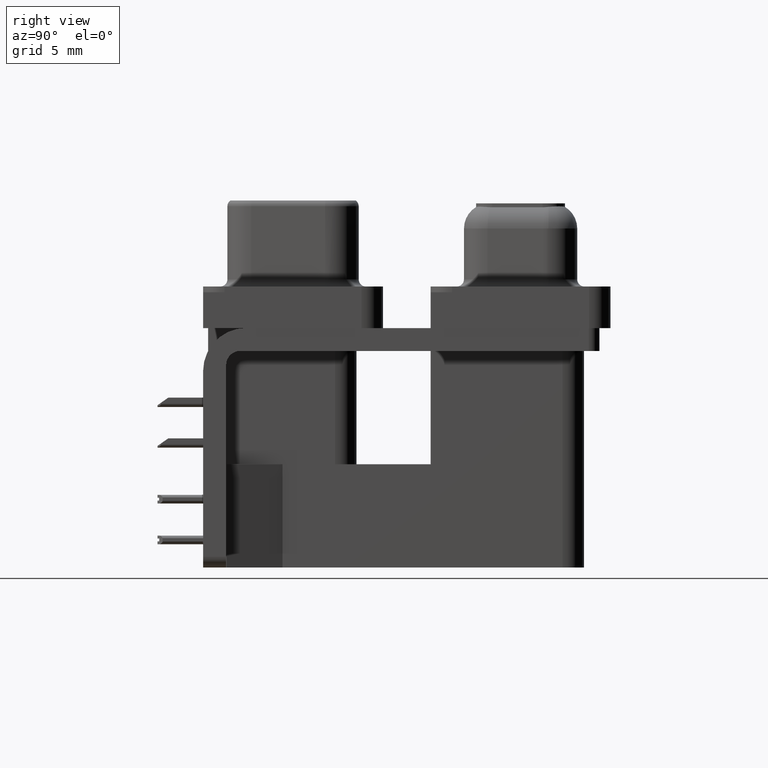
[diagram: clean part render]
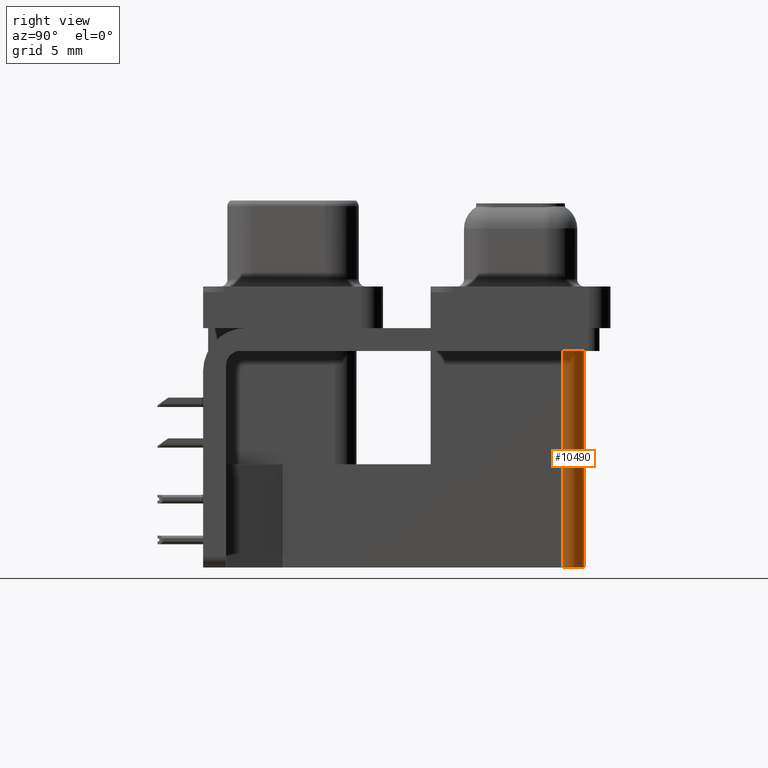
[diagram: same view with one face highlighted and labeled with its STEP entity id]
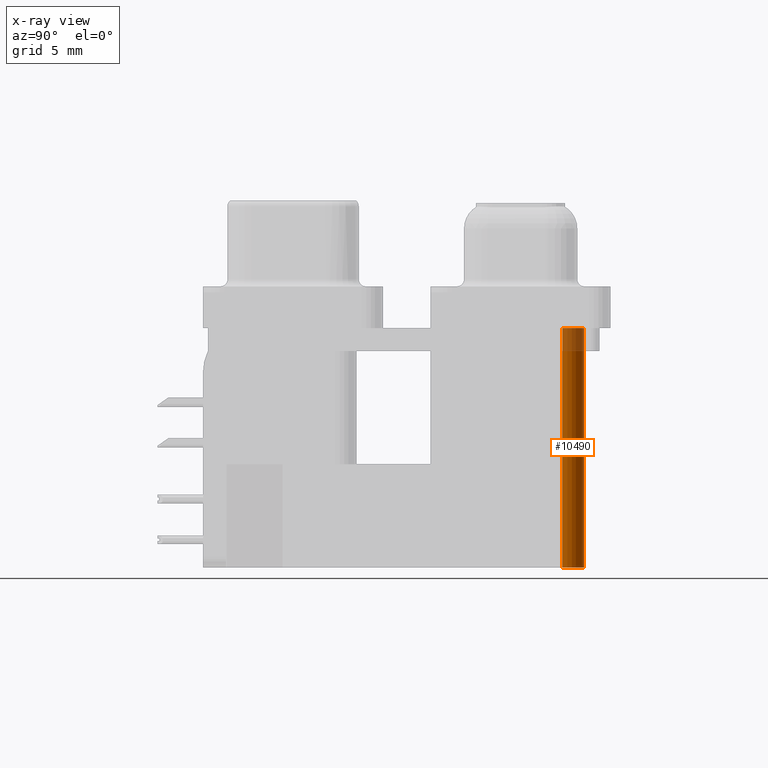
[diagram: x-ray of the same camera — body ghosted, the highlighted face saturated]
A machine part, right view. The second image highlights one B-rep face of the part: STEP entity #10490.
The next image is the same camera in x-ray: the body ghosted, the highlighted face saturated — about 10% of this face is hidden behind the body in this view.
In plain terms, the highlighted cylindrical surface (edge-blend (fillet) strip) has radius 1.5 mm, axis along (0, 0, 1).
Its self-contained STEP definition (entity closure, byte-faithful):
#1056 = DIRECTION ( 'NONE',  ( 0.0000000000000000000, 0.0000000000000000000, -1.000000000000000000 ) ) ;
#1422 = CARTESIAN_POINT ( 'NONE',  ( 19.69999999999999218, 18.79999999999999005, -2.500000000000000000 ) ) ;
#2049 = CARTESIAN_POINT ( 'NONE',  ( 21.19999999999998863, 18.79999999999999005, -19.19999999999999929 ) ) ;
#2361 = DIRECTION ( 'NONE',  ( -0.0000000000000000000, -0.0000000000000000000, 1.000000000000000000 ) ) ;
#2680 = AXIS2_PLACEMENT_3D ( 'NONE', #1422, #12550, #17291 ) ;
#4485 = CARTESIAN_POINT ( 'NONE',  ( 19.69999999999999218, 20.29999999999999005, -19.19999999999999929 ) ) ;
#5032 = CYLINDRICAL_SURFACE ( 'NONE', #11921, 1.499999999999997780 ) ;
#6070 = VERTEX_POINT ( 'NONE', #2049 ) ;
#6803 = CARTESIAN_POINT ( 'NONE',  ( 19.69999999999999218, 20.29999999999999005, -19.19999999999999929 ) ) ;
#7336 = VERTEX_POINT ( 'NONE', #4485 ) ;
#8703 = CARTESIAN_POINT ( 'NONE',  ( 21.19999999999998863, 18.79999999999999005, -2.500000000000000000 ) ) ;
#9016 = CARTESIAN_POINT ( 'NONE',  ( 19.69999999999999218, 18.79999999999999005, -19.19999999999999929 ) ) ;
#9703 = EDGE_CURVE ( 'NONE', #7336, #30222, #15249, .T. ) ;
#10490 = ADVANCED_FACE ( 'NONE', ( #18048 ), #5032, .T. ) ;
#10760 = ORIENTED_EDGE ( 'NONE', *, *, #9703, .T. ) ;
#11178 = EDGE_CURVE ( 'NONE', #7336, #6070, #20370, .T. ) ;
#11533 = CARTESIAN_POINT ( 'NONE',  ( 21.19999999999998863, 18.79999999999999005, -19.19999999999999929 ) ) ;
#11614 = CARTESIAN_POINT ( 'NONE',  ( 19.69999999999999218, 20.29999999999999005, -2.500000000000000000 ) ) ;
#11921 = AXIS2_PLACEMENT_3D ( 'NONE', #28767, #2361, #13134 ) ;
#12550 = DIRECTION ( 'NONE',  ( 0.0000000000000000000, 0.0000000000000000000, -1.000000000000000000 ) ) ;
#13134 = DIRECTION ( 'NONE',  ( 1.000000000000000000, 0.0000000000000000000, 0.0000000000000000000 ) ) ;
#14012 = DIRECTION ( 'NONE',  ( -0.0000000000000000000, -0.0000000000000000000, 1.000000000000000000 ) ) ;
#14400 = ORIENTED_EDGE ( 'NONE', *, *, #11178, .F. ) ;
#15249 = LINE ( 'NONE', #6803, #33306 ) ;
#16476 = LINE ( 'NONE', #11533, #24802 ) ;
#17291 = DIRECTION ( 'NONE',  ( -1.000000000000000000, 0.0000000000000000000, 0.0000000000000000000 ) ) ;
#18048 = FACE_OUTER_BOUND ( 'NONE', #34774, .T. ) ;
#18620 = VERTEX_POINT ( 'NONE', #8703 ) ;
#20370 = CIRCLE ( 'NONE', #22606, 1.499999999999997780 ) ;
#21335 = EDGE_CURVE ( 'NONE', #30222, #18620, #25156, .T. ) ;
#22606 = AXIS2_PLACEMENT_3D ( 'NONE', #9016, #1056, #25008 ) ;
#23149 = DIRECTION ( 'NONE',  ( -0.0000000000000000000, -0.0000000000000000000, 1.000000000000000000 ) ) ;
#24802 = VECTOR ( 'NONE', #14012, 1000.000000000000000 ) ;
#24942 = ORIENTED_EDGE ( 'NONE', *, *, #34318, .F. ) ;
#25008 = DIRECTION ( 'NONE',  ( -1.000000000000000000, 0.0000000000000000000, 0.0000000000000000000 ) ) ;
#25156 = CIRCLE ( 'NONE', #2680, 1.499999999999997780 ) ;
#28767 = CARTESIAN_POINT ( 'NONE',  ( 19.69999999999999218, 18.79999999999999005, -19.19999999999999929 ) ) ;
#30222 = VERTEX_POINT ( 'NONE', #11614 ) ;
#33306 = VECTOR ( 'NONE', #23149, 1000.000000000000000 ) ;
#33667 = ORIENTED_EDGE ( 'NONE', *, *, #21335, .T. ) ;
#34318 = EDGE_CURVE ( 'NONE', #6070, #18620, #16476, .T. ) ;
#34774 = EDGE_LOOP ( 'NONE', ( #33667, #24942, #14400, #10760 ) ) ;